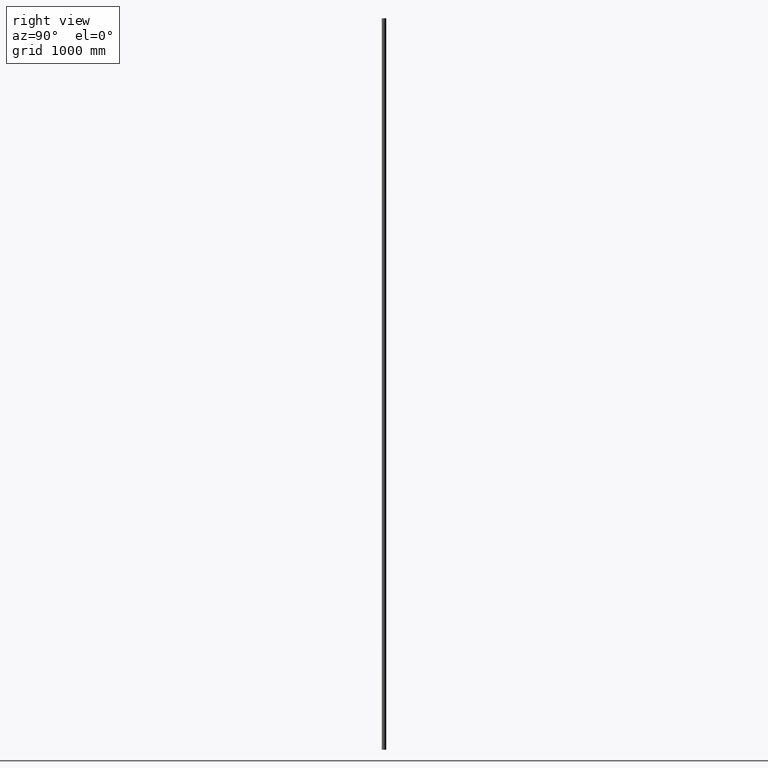
[diagram: clean part render]
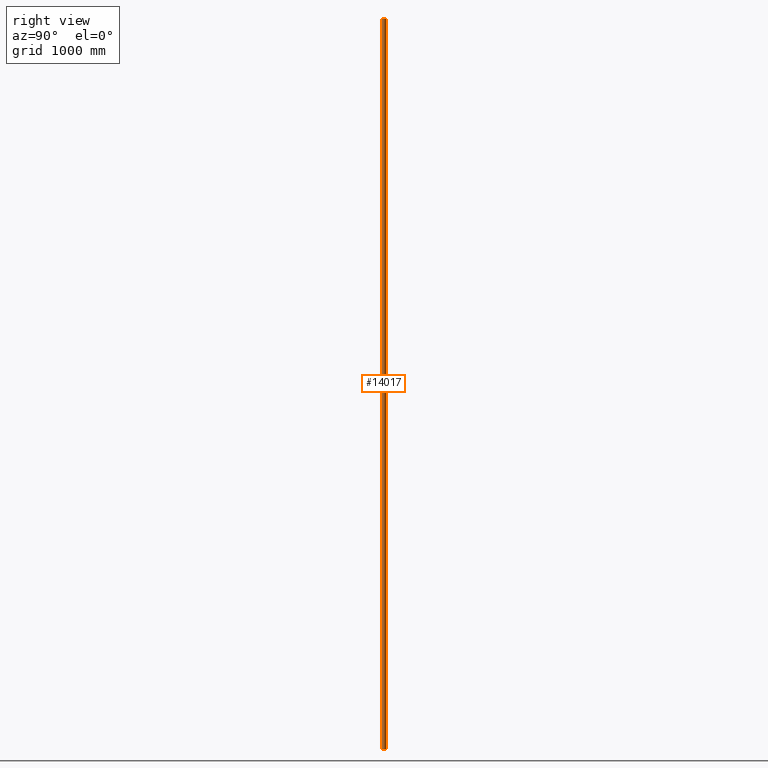
[diagram: same view with one face highlighted and labeled with its STEP entity id]
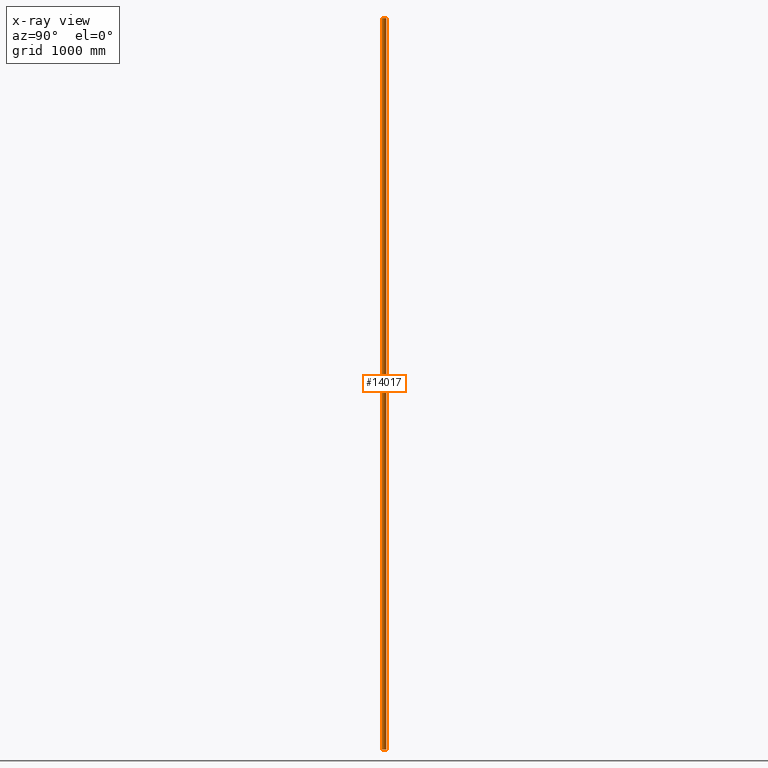
[diagram: x-ray of the same camera — body ghosted, the highlighted face saturated]
A machine part, right view. The second image highlights one B-rep face of the part: STEP entity #14017.
The next image is the same camera in x-ray: the body ghosted, the highlighted face saturated — about 0% of this face is hidden behind the body in this view.
In plain terms, the highlighted cylindrical surface (edge-blend (fillet) strip) has radius 21.2 mm, axis along (0, 0, 1).
Its self-contained STEP definition (entity closure, byte-faithful):
#105 = EDGE_CURVE ( 'NONE', #3379, #6516, #6483, .T. ) ;
#177 = EDGE_LOOP ( 'NONE', ( #11100, #13542, #10929, #12918 ) ) ;
#335 = CYLINDRICAL_SURFACE ( 'NONE', #8966, 21.19999999999999574 ) ;
#830 = CARTESIAN_POINT ( 'NONE',  ( 8.179191214543138373E-16, 14.34712514756876445, 3000.000000000000000 ) ) ;
#1380 = CARTESIAN_POINT ( 'NONE',  ( 15.45833333333333037, -0.1608013257614459568, -3000.000000000000000 ) ) ;
#1578 = CARTESIAN_POINT ( 'NONE',  ( 8.179191214543138373E-16, 14.34712514756876445, -3000.000000000000000 ) ) ;
#2095 = EDGE_CURVE ( 'NONE', #3379, #11529, #4341, .T. ) ;
#2224 = DIRECTION ( 'NONE',  ( 0.000000000000000000, 0.000000000000000000, 1.000000000000000000 ) ) ;
#2242 = VECTOR ( 'NONE', #3299, 1000.000000000000000 ) ;
#3299 = DIRECTION ( 'NONE',  ( 0.000000000000000000, 0.000000000000000000, 1.000000000000000000 ) ) ;
#3379 = VERTEX_POINT ( 'NONE', #1380 ) ;
#4341 = LINE ( 'NONE', #6047, #11748 ) ;
#4812 = DIRECTION ( 'NONE',  ( 1.000000000000000000, 0.000000000000000000, 0.000000000000000000 ) ) ;
#5933 = CARTESIAN_POINT ( 'NONE',  ( -15.45833333333332682, -0.1608013257614476776, 3000.000000000000000 ) ) ;
#6047 = CARTESIAN_POINT ( 'NONE',  ( 15.45833333333333037, -0.1608013257614459568, -3000.000000000000000 ) ) ;
#6483 = CIRCLE ( 'NONE', #14101, 21.19999999999999574 ) ;
#6516 = VERTEX_POINT ( 'NONE', #14404 ) ;
#6991 = CIRCLE ( 'NONE', #9040, 21.19999999999999574 ) ;
#7976 = CARTESIAN_POINT ( 'NONE',  ( 8.179191214543138373E-16, 14.34712514756876445, -3000.000000000000000 ) ) ;
#8688 = CARTESIAN_POINT ( 'NONE',  ( 15.45833333333333037, -0.1608013257614459568, 3000.000000000000000 ) ) ;
#8814 = FACE_OUTER_BOUND ( 'NONE', #177, .T. ) ;
#8966 = AXIS2_PLACEMENT_3D ( 'NONE', #1578, #11983, #4812 ) ;
#9040 = AXIS2_PLACEMENT_3D ( 'NONE', #830, #12386, #12586 ) ;
#9872 = EDGE_CURVE ( 'NONE', #11529, #14829, #6991, .T. ) ;
#10011 = LINE ( 'NONE', #13741, #2242 ) ;
#10327 = DIRECTION ( 'NONE',  ( 1.000000000000000000, 0.000000000000000000, 0.000000000000000000 ) ) ;
#10929 = ORIENTED_EDGE ( 'NONE', *, *, #105, .T. ) ;
#11100 = ORIENTED_EDGE ( 'NONE', *, *, #9872, .F. ) ;
#11529 = VERTEX_POINT ( 'NONE', #8688 ) ;
#11748 = VECTOR ( 'NONE', #11776, 1000.000000000000000 ) ;
#11776 = DIRECTION ( 'NONE',  ( 0.000000000000000000, 0.000000000000000000, 1.000000000000000000 ) ) ;
#11983 = DIRECTION ( 'NONE',  ( 0.000000000000000000, 0.000000000000000000, 1.000000000000000000 ) ) ;
#12386 = DIRECTION ( 'NONE',  ( 0.000000000000000000, 0.000000000000000000, 1.000000000000000000 ) ) ;
#12586 = DIRECTION ( 'NONE',  ( 1.000000000000000000, 0.000000000000000000, 0.000000000000000000 ) ) ;
#12918 = ORIENTED_EDGE ( 'NONE', *, *, #13258, .T. ) ;
#13258 = EDGE_CURVE ( 'NONE', #6516, #14829, #10011, .T. ) ;
#13542 = ORIENTED_EDGE ( 'NONE', *, *, #2095, .F. ) ;
#13741 = CARTESIAN_POINT ( 'NONE',  ( -15.45833333333332682, -0.1608013257614476776, -3000.000000000000000 ) ) ;
#14017 = ADVANCED_FACE ( 'NONE', ( #8814 ), #335, .T. ) ;
#14101 = AXIS2_PLACEMENT_3D ( 'NONE', #7976, #2224, #10327 ) ;
#14404 = CARTESIAN_POINT ( 'NONE',  ( -15.45833333333332682, -0.1608013257614476776, -3000.000000000000000 ) ) ;
#14829 = VERTEX_POINT ( 'NONE', #5933 ) ;